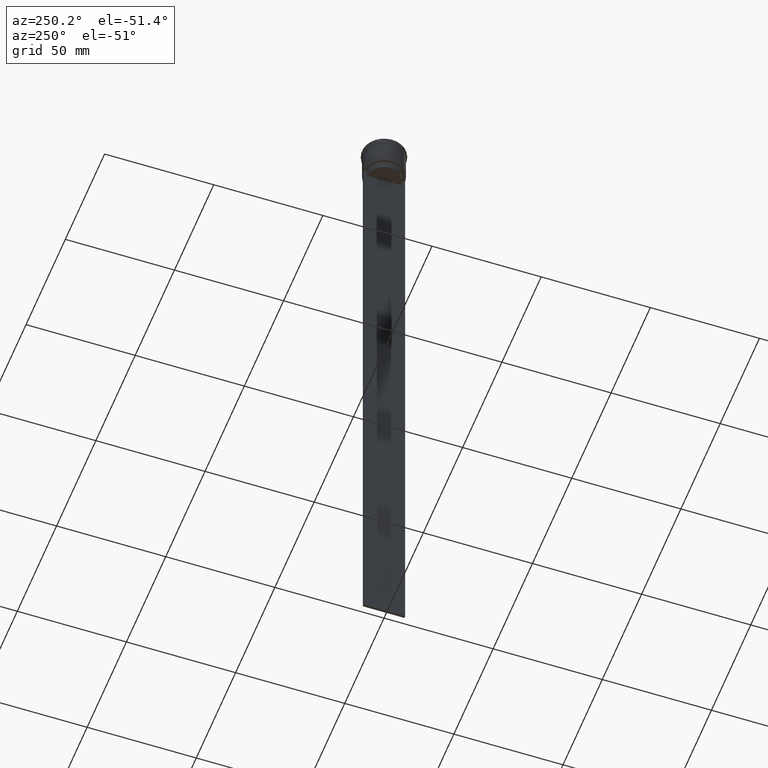
[diagram: clean part render]
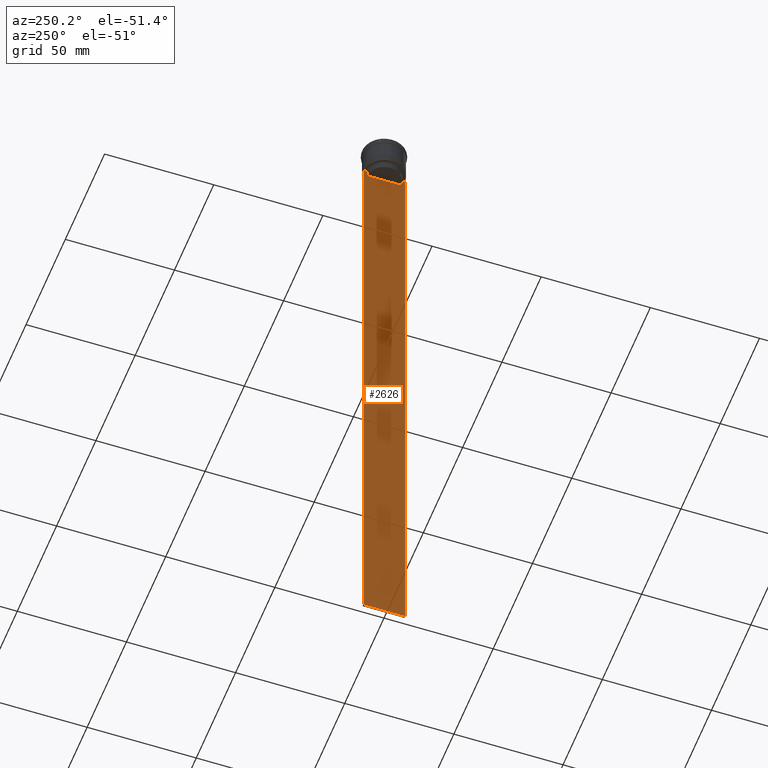
[diagram: same view with one face highlighted and labeled with its STEP entity id]
A machine part, auxiliary view. The second image highlights one B-rep face of the part: STEP entity #2626.
In plain terms, the highlighted planar face has unit normal (-1, 0, 0).
Its self-contained STEP definition (entity closure, byte-faithful):
#2 = CARTESIAN_POINT ( 'NONE',  ( -0.5000000000000000000, -9.500000000000001776, -14.00000000000000178 ) ) ;
#11 = VECTOR ( 'NONE', #1788, 1000.000000000000000 ) ;
#15 = CARTESIAN_POINT ( 'NONE',  ( -0.5000000000000000000, -9.500000000000001776, -14.00000000000000178 ) ) ;
#52 = ORIENTED_EDGE ( 'NONE', *, *, #1334, .F. ) ;
#69 = CARTESIAN_POINT ( 'NONE',  ( -0.5000000000000000000, 9.499999999999998224, 5.026297590440445440 ) ) ;
#78 = CARTESIAN_POINT ( 'NONE',  ( -0.5000000000000000000, -9.386692708297204035, -14.00000000000000178 ) ) ;
#95 = VECTOR ( 'NONE', #1324, 1000.000000000000000 ) ;
#157 = DIRECTION ( 'NONE',  ( 0.000000000000000000, 0.000000000000000000, 1.000000000000000000 ) ) ;
#165 = VERTEX_POINT ( 'NONE', #358 ) ;
#195 = LINE ( 'NONE', #15, #780 ) ;
#198 = B_SPLINE_CURVE_WITH_KNOTS ( 'NONE', 3,
 ( #1210, #2662, #1432, #805 ),
 .UNSPECIFIED., .F., .F.,
 ( 4, 4 ),
 ( 0.03673372442973153046, 0.03744389749832059688 ),
 .UNSPECIFIED. ) ;
#271 = LINE ( 'NONE', #1087, #2504 ) ;
#290 = DIRECTION ( 'NONE',  ( 0.000000000000000000, 0.000000000000000000, -1.000000000000000000 ) ) ;
#301 = ORIENTED_EDGE ( 'NONE', *, *, #2024, .F. ) ;
#358 = CARTESIAN_POINT ( 'NONE',  ( -0.5000000000000000000, -7.884161337770803080, -17.00000000000000000 ) ) ;
#361 = VECTOR ( 'NONE', #697, 1000.000000000000000 ) ;
#362 = CARTESIAN_POINT ( 'NONE',  ( -0.5000000000000000000, -9.500000000000001776, 5.026297590440445440 ) ) ;
#388 = VERTEX_POINT ( 'NONE', #2017 ) ;
#407 = CARTESIAN_POINT ( 'NONE',  ( -0.5000000000000000000, -7.884161337770803080, 0.000000000000000000 ) ) ;
#414 = EDGE_CURVE ( 'NONE', #1425, #2315, #1288, .T. ) ;
#429 = ORIENTED_EDGE ( 'NONE', *, *, #1178, .F. ) ;
#474 = ORIENTED_EDGE ( 'NONE', *, *, #2257, .F. ) ;
#505 = CARTESIAN_POINT ( 'NONE',  ( -0.5000000000000000000, 9.499999999999994671, -14.00000000000000178 ) ) ;
#509 = VECTOR ( 'NONE', #852, 1000.000000000000000 ) ;
#516 = LINE ( 'NONE', #1114, #361 ) ;
#663 = CARTESIAN_POINT ( 'NONE',  ( -0.5000000000000000000, 8.218133718559618828, -14.16667606394327983 ) ) ;
#674 = CARTESIAN_POINT ( 'NONE',  ( -0.5000000000000000000, 8.385105843100605583, -14.00000000000000178 ) ) ;
#677 = ORIENTED_EDGE ( 'NONE', *, *, #1188, .F. ) ;
#694 = LINE ( 'NONE', #2325, #95 ) ;
#697 = DIRECTION ( 'NONE',  ( 0.000000000000000000, -1.000000000000000000, 0.000000000000000000 ) ) ;
#780 = VECTOR ( 'NONE', #2243, 1000.000000000000000 ) ;
#796 = CARTESIAN_POINT ( 'NONE',  ( -0.5000000000000000000, -8.385105843100605583, -14.00000000000000178 ) ) ;
#805 = CARTESIAN_POINT ( 'NONE',  ( -0.5000000000000000000, -8.385105843100605583, -14.00000000000000178 ) ) ;
#814 = ORIENTED_EDGE ( 'NONE', *, *, #414, .T. ) ;
#852 = DIRECTION ( 'NONE',  ( 0.000000000000000000, 0.000000000000000000, -1.000000000000000000 ) ) ;
#880 = LINE ( 'NONE', #1234, #1171 ) ;
#903 = B_SPLINE_CURVE_WITH_KNOTS ( 'NONE', 3,
 ( #674, #663, #1656, #2482 ),
 .UNSPECIFIED., .F., .F.,
 ( 4, 4 ),
 ( 0.01426761478740281447, 0.01497538974438914448 ),
 .UNSPECIFIED. ) ;
#910 = EDGE_CURVE ( 'NONE', #1177, #2315, #271, .T. ) ;
#919 = VERTEX_POINT ( 'NONE', #1922 ) ;
#1024 = DIRECTION ( 'NONE',  ( 0.000000000000000000, 0.000000000000000000, -1.000000000000000000 ) ) ;
#1050 = LINE ( 'NONE', #407, #1516 ) ;
#1087 = CARTESIAN_POINT ( 'NONE',  ( -0.5000000000000000000, -9.500000000000001776, -314.0000000000000000 ) ) ;
#1098 = VERTEX_POINT ( 'NONE', #796 ) ;
#1114 = CARTESIAN_POINT ( 'NONE',  ( -0.5000000000000000000, -9.500000000000001776, -14.00000000000000178 ) ) ;
#1135 = AXIS2_PLACEMENT_3D ( 'NONE', #362, #2004, #157 ) ;
#1171 = VECTOR ( 'NONE', #290, 1000.000000000000000 ) ;
#1177 = VERTEX_POINT ( 'NONE', #1660 ) ;
#1178 = EDGE_CURVE ( 'NONE', #1850, #1221, #195, .T. ) ;
#1188 = EDGE_CURVE ( 'NONE', #1221, #1177, #2486, .T. ) ;
#1210 = CARTESIAN_POINT ( 'NONE',  ( -0.5000000000000000000, -7.884161337770803080, -14.50000000000000000 ) ) ;
#1221 = VERTEX_POINT ( 'NONE', #2 ) ;
#1231 = EDGE_CURVE ( 'NONE', #165, #2219, #1050, .T. ) ;
#1234 = CARTESIAN_POINT ( 'NONE',  ( -0.5000000000000000000, 7.884161337770803080, 0.000000000000000000 ) ) ;
#1288 = LINE ( 'NONE', #69, #509 ) ;
#1299 = ORIENTED_EDGE ( 'NONE', *, *, #1231, .F. ) ;
#1324 = DIRECTION ( 'NONE',  ( 0.000000000000000000, -1.000000000000000000, 0.000000000000000000 ) ) ;
#1334 = EDGE_CURVE ( 'NONE', #1425, #1407, #694, .T. ) ;
#1359 = LINE ( 'NONE', #2168, #2134 ) ;
#1373 = ORIENTED_EDGE ( 'NONE', *, *, #1959, .F. ) ;
#1383 = PLANE ( 'NONE',  #1135 ) ;
#1407 = VERTEX_POINT ( 'NONE', #1752 ) ;
#1425 = VERTEX_POINT ( 'NONE', #505 ) ;
#1432 = CARTESIAN_POINT ( 'NONE',  ( -0.5000000000000000000, -8.218133703942523738, -14.16667607853445787 ) ) ;
#1460 = CARTESIAN_POINT ( 'NONE',  ( -0.5000000000000000000, -9.500000000000001776, 5.026297590440445440 ) ) ;
#1516 = VECTOR ( 'NONE', #1645, 1000.000000000000000 ) ;
#1524 = EDGE_LOOP ( 'NONE', ( #2466, #474, #52, #814, #2414, #677, #429, #1373, #1778, #1299, #2332, #301 ) ) ;
#1584 = FACE_OUTER_BOUND ( 'NONE', #1524, .T. ) ;
#1645 = DIRECTION ( 'NONE',  ( -0.000000000000000000, -0.000000000000000000, 1.000000000000000000 ) ) ;
#1656 = CARTESIAN_POINT ( 'NONE',  ( -0.5000000000000000000, 8.051152811434374001, -14.33334332653219079 ) ) ;
#1660 = CARTESIAN_POINT ( 'NONE',  ( -0.5000000000000000000, -9.500000000000001776, -314.0000000000000000 ) ) ;
#1683 = EDGE_CURVE ( 'NONE', #388, #919, #903, .T. ) ;
#1684 = CARTESIAN_POINT ( 'NONE',  ( -0.5000000000000000000, 7.884161337770803080, -17.00000000000000000 ) ) ;
#1689 = VECTOR ( 'NONE', #1024, 1000.000000000000000 ) ;
#1752 = CARTESIAN_POINT ( 'NONE',  ( -0.5000000000000000000, 9.386692708297204035, -14.00000000000000178 ) ) ;
#1778 = ORIENTED_EDGE ( 'NONE', *, *, #2274, .F. ) ;
#1788 = DIRECTION ( 'NONE',  ( 0.000000000000000000, -1.000000000000000000, 0.000000000000000000 ) ) ;
#1801 = LINE ( 'NONE', #2630, #11 ) ;
#1850 = VERTEX_POINT ( 'NONE', #78 ) ;
#1922 = CARTESIAN_POINT ( 'NONE',  ( -0.5000000000000000000, 7.884161337770803080, -14.50000000000000000 ) ) ;
#1959 = EDGE_CURVE ( 'NONE', #1098, #1850, #1801, .T. ) ;
#2004 = DIRECTION ( 'NONE',  ( -1.000000000000000000, 0.000000000000000000, 0.000000000000000000 ) ) ;
#2017 = CARTESIAN_POINT ( 'NONE',  ( -0.5000000000000000000, 8.385105843100605583, -14.00000000000000178 ) ) ;
#2024 = EDGE_CURVE ( 'NONE', #919, #2589, #880, .T. ) ;
#2134 = VECTOR ( 'NONE', #2196, 1000.000000000000000 ) ;
#2149 = CARTESIAN_POINT ( 'NONE',  ( -0.5000000000000000000, 9.499999999999998224, -314.0000000000000000 ) ) ;
#2168 = CARTESIAN_POINT ( 'NONE',  ( -0.5000000000000000000, 7.899999999999994138, -17.00000000000000000 ) ) ;
#2196 = DIRECTION ( 'NONE',  ( 0.000000000000000000, -1.000000000000000000, 0.000000000000000000 ) ) ;
#2219 = VERTEX_POINT ( 'NONE', #2540 ) ;
#2243 = DIRECTION ( 'NONE',  ( 0.000000000000000000, -1.000000000000000000, 0.000000000000000000 ) ) ;
#2257 = EDGE_CURVE ( 'NONE', #1407, #388, #516, .T. ) ;
#2274 = EDGE_CURVE ( 'NONE', #2219, #1098, #198, .T. ) ;
#2315 = VERTEX_POINT ( 'NONE', #2149 ) ;
#2325 = CARTESIAN_POINT ( 'NONE',  ( -0.5000000000000000000, -9.500000000000001776, -14.00000000000000178 ) ) ;
#2332 = ORIENTED_EDGE ( 'NONE', *, *, #2515, .F. ) ;
#2414 = ORIENTED_EDGE ( 'NONE', *, *, #910, .F. ) ;
#2466 = ORIENTED_EDGE ( 'NONE', *, *, #1683, .F. ) ;
#2482 = CARTESIAN_POINT ( 'NONE',  ( -0.5000000000000000000, 7.884161337770803080, -14.50000000000000000 ) ) ;
#2486 = LINE ( 'NONE', #1460, #1689 ) ;
#2497 = DIRECTION ( 'NONE',  ( 0.000000000000000000, 1.000000000000000000, 0.000000000000000000 ) ) ;
#2504 = VECTOR ( 'NONE', #2497, 1000.000000000000000 ) ;
#2515 = EDGE_CURVE ( 'NONE', #2589, #165, #1359, .T. ) ;
#2540 = CARTESIAN_POINT ( 'NONE',  ( -0.5000000000000000000, -7.884161337770803080, -14.50000000000000000 ) ) ;
#2589 = VERTEX_POINT ( 'NONE', #1684 ) ;
#2626 = ADVANCED_FACE ( 'NONE', ( #1584 ), #1383, .T. ) ;
#2630 = CARTESIAN_POINT ( 'NONE',  ( -0.5000000000000000000, -9.500000000000001776, -14.00000000000000178 ) ) ;
#2662 = CARTESIAN_POINT ( 'NONE',  ( -0.5000000000000000000, -8.051152795888546265, -14.33334334204685057 ) ) ;